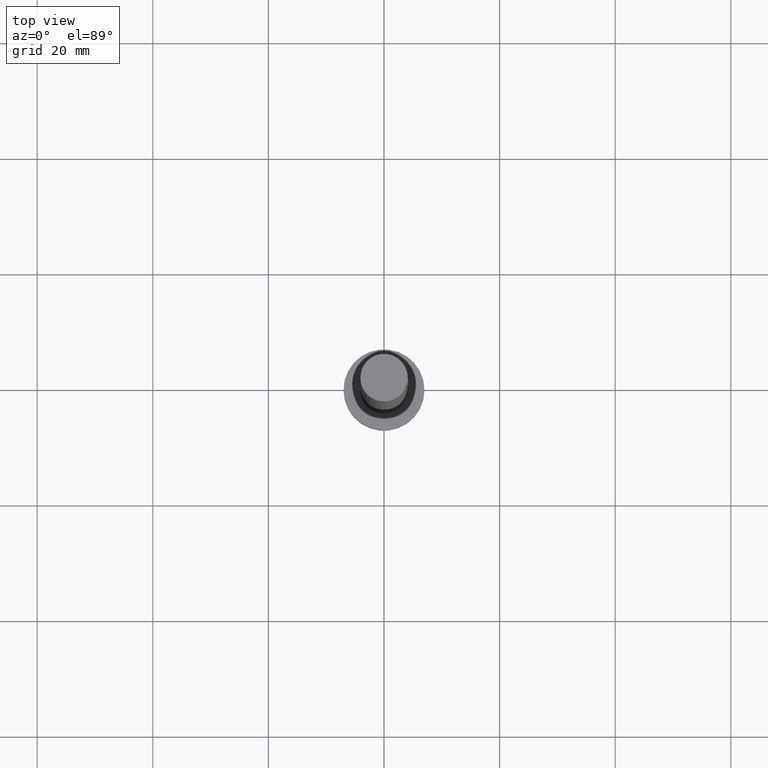
[diagram: clean part render]
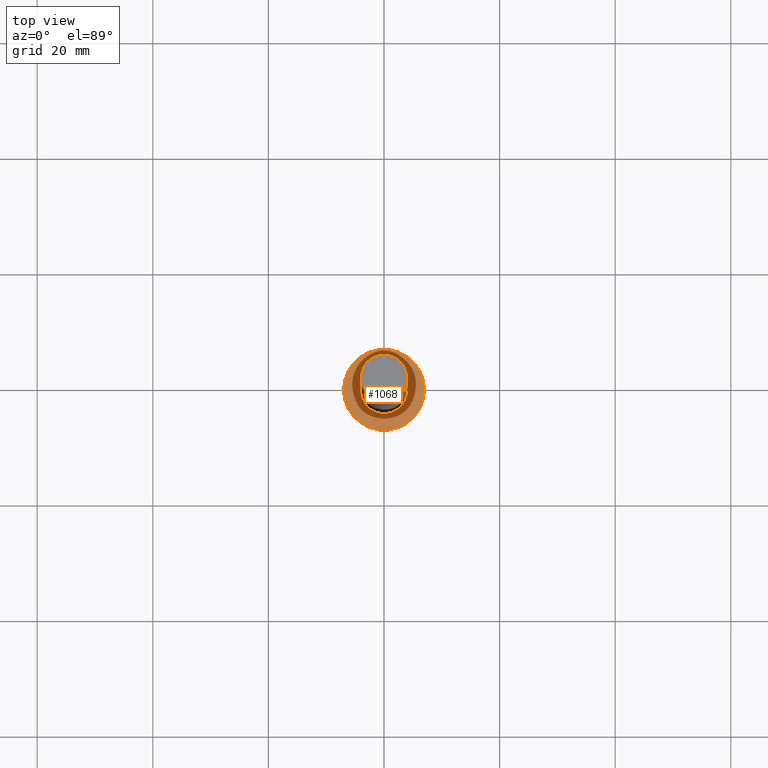
[diagram: same view with one face highlighted and labeled with its STEP entity id]
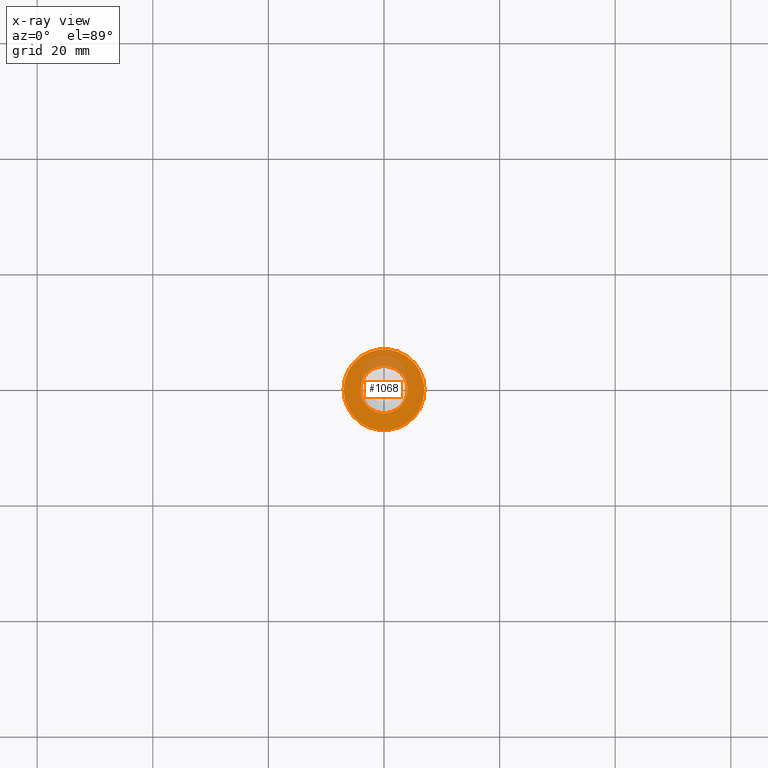
[diagram: x-ray of the same camera — body ghosted, the highlighted face saturated]
A machine part, top view. The second image highlights one B-rep face of the part: STEP entity #1068.
The next image is the same camera in x-ray: the body ghosted, the highlighted face saturated — about 17% of this face is hidden behind the body in this view.
In plain terms, the highlighted planar face has unit normal (0, 0, 1).
Its self-contained STEP definition (entity closure, byte-faithful):
#6 = EDGE_CURVE ( 'NONE', #1351, #58, #982, .T. ) ;
#30 = CARTESIAN_POINT ( 'NONE',  ( 7.000000000000000000, 8.572527594031473190E-16, 5.000000000000000000 ) ) ;
#50 = ORIENTED_EDGE ( 'NONE', *, *, #869, .F. ) ;
#58 = VERTEX_POINT ( 'NONE', #1070 ) ;
#79 = AXIS2_PLACEMENT_3D ( 'NONE', #436, #1066, #203 ) ;
#91 = AXIS2_PLACEMENT_3D ( 'NONE', #1172, #368, #221 ) ;
#203 = DIRECTION ( 'NONE',  ( 1.000000000000000000, 0.000000000000000000, 0.000000000000000000 ) ) ;
#221 = DIRECTION ( 'NONE',  ( 1.000000000000000000, 0.000000000000000000, -0.000000000000000000 ) ) ;
#232 = EDGE_CURVE ( 'NONE', #776, #1298, #851, .T. ) ;
#286 = DIRECTION ( 'NONE',  ( 1.000000000000000000, 0.000000000000000000, 0.000000000000000000 ) ) ;
#330 = AXIS2_PLACEMENT_3D ( 'NONE', #637, #668, #286 ) ;
#344 = CARTESIAN_POINT ( 'NONE',  ( 0.000000000000000000, 0.000000000000000000, 5.000000000000000000 ) ) ;
#368 = DIRECTION ( 'NONE',  ( 0.000000000000000000, 0.000000000000000000, 1.000000000000000000 ) ) ;
#436 = CARTESIAN_POINT ( 'NONE',  ( 0.000000000000000000, 0.000000000000000000, 5.000000000000000000 ) ) ;
#457 = AXIS2_PLACEMENT_3D ( 'NONE', #344, #1320, #1159 ) ;
#465 = PLANE ( 'NONE',  #91 ) ;
#485 = DIRECTION ( 'NONE',  ( 1.000000000000000000, 0.000000000000000000, 0.000000000000000000 ) ) ;
#592 = CIRCLE ( 'NONE', #1386, 7.000000000000000000 ) ;
#612 = EDGE_LOOP ( 'NONE', ( #1468, #1174 ) ) ;
#637 = CARTESIAN_POINT ( 'NONE',  ( 0.000000000000000000, 0.000000000000000000, 5.000000000000000000 ) ) ;
#668 = DIRECTION ( 'NONE',  ( 0.000000000000000000, 0.000000000000000000, 1.000000000000000000 ) ) ;
#678 = CARTESIAN_POINT ( 'NONE',  ( 4.099999999999999645, 5.021051876504147385E-16, 5.000000000000000000 ) ) ;
#724 = CIRCLE ( 'NONE', #79, 4.099999999999999645 ) ;
#776 = VERTEX_POINT ( 'NONE', #30 ) ;
#851 = CIRCLE ( 'NONE', #330, 7.000000000000000000 ) ;
#869 = EDGE_CURVE ( 'NONE', #58, #1351, #724, .T. ) ;
#970 = EDGE_LOOP ( 'NONE', ( #50, #1002 ) ) ;
#982 = CIRCLE ( 'NONE', #457, 4.099999999999999645 ) ;
#1002 = ORIENTED_EDGE ( 'NONE', *, *, #6, .F. ) ;
#1058 = EDGE_CURVE ( 'NONE', #1298, #776, #592, .T. ) ;
#1066 = DIRECTION ( 'NONE',  ( 0.000000000000000000, 0.000000000000000000, 1.000000000000000000 ) ) ;
#1068 = ADVANCED_FACE ( 'NONE', ( #1305, #1194 ), #465, .T. ) ;
#1070 = CARTESIAN_POINT ( 'NONE',  ( -4.099999999999999645, 0.000000000000000000, 5.000000000000000000 ) ) ;
#1159 = DIRECTION ( 'NONE',  ( 1.000000000000000000, 0.000000000000000000, 0.000000000000000000 ) ) ;
#1172 = CARTESIAN_POINT ( 'NONE',  ( 0.000000000000000000, 0.000000000000000000, 5.000000000000000000 ) ) ;
#1174 = ORIENTED_EDGE ( 'NONE', *, *, #232, .T. ) ;
#1194 = FACE_OUTER_BOUND ( 'NONE', #612, .T. ) ;
#1298 = VERTEX_POINT ( 'NONE', #1509 ) ;
#1305 = FACE_BOUND ( 'NONE', #970, .T. ) ;
#1320 = DIRECTION ( 'NONE',  ( 0.000000000000000000, 0.000000000000000000, 1.000000000000000000 ) ) ;
#1351 = VERTEX_POINT ( 'NONE', #678 ) ;
#1386 = AXIS2_PLACEMENT_3D ( 'NONE', #1452, #1550, #485 ) ;
#1452 = CARTESIAN_POINT ( 'NONE',  ( 0.000000000000000000, 0.000000000000000000, 5.000000000000000000 ) ) ;
#1468 = ORIENTED_EDGE ( 'NONE', *, *, #1058, .T. ) ;
#1509 = CARTESIAN_POINT ( 'NONE',  ( -7.000000000000000000, 0.000000000000000000, 5.000000000000000000 ) ) ;
#1550 = DIRECTION ( 'NONE',  ( 0.000000000000000000, 0.000000000000000000, 1.000000000000000000 ) ) ;